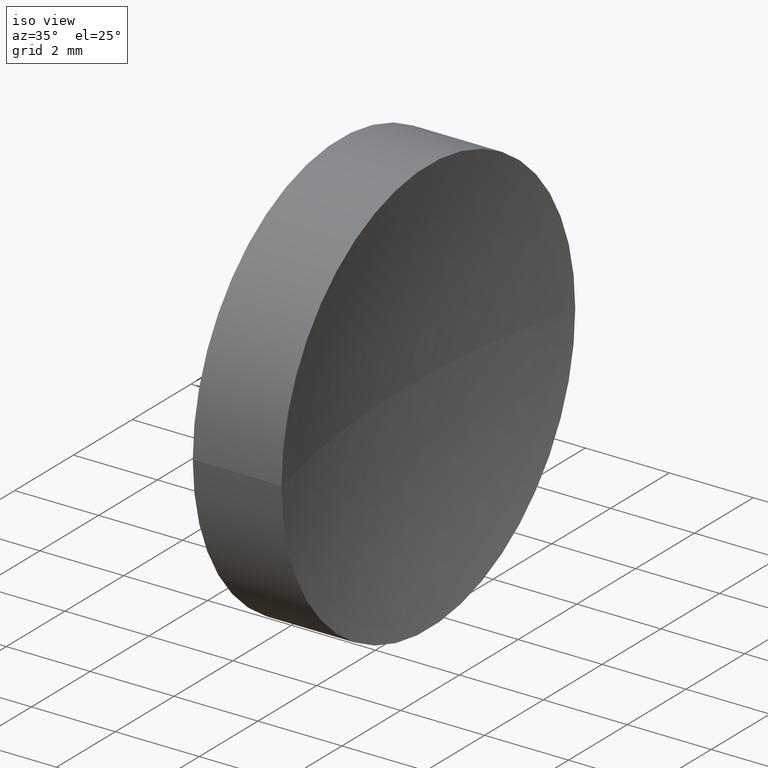
[diagram: clean part render]
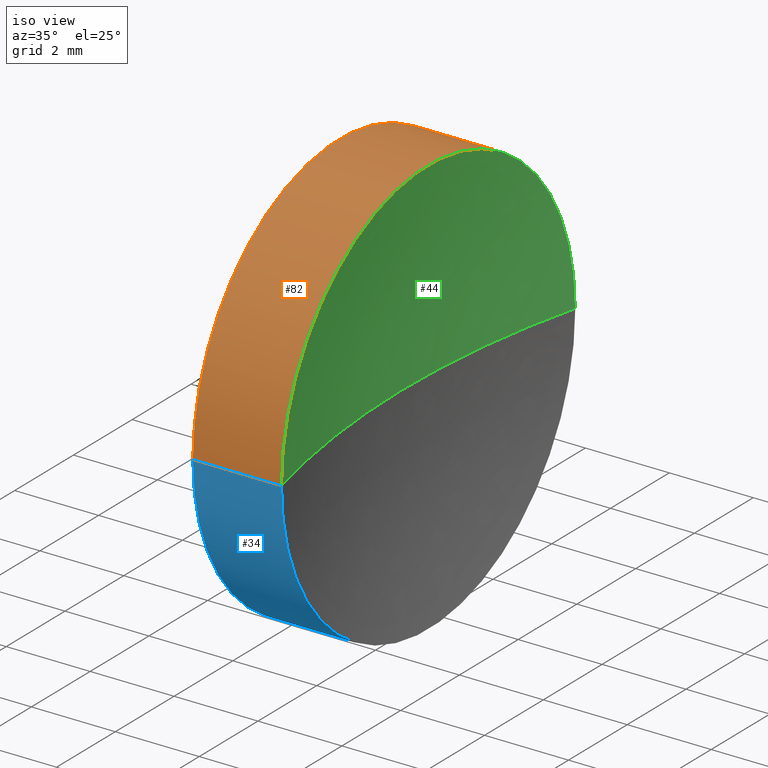
[diagram: same view with three faces highlighted in distinct colors, each labeled with its STEP entity id]
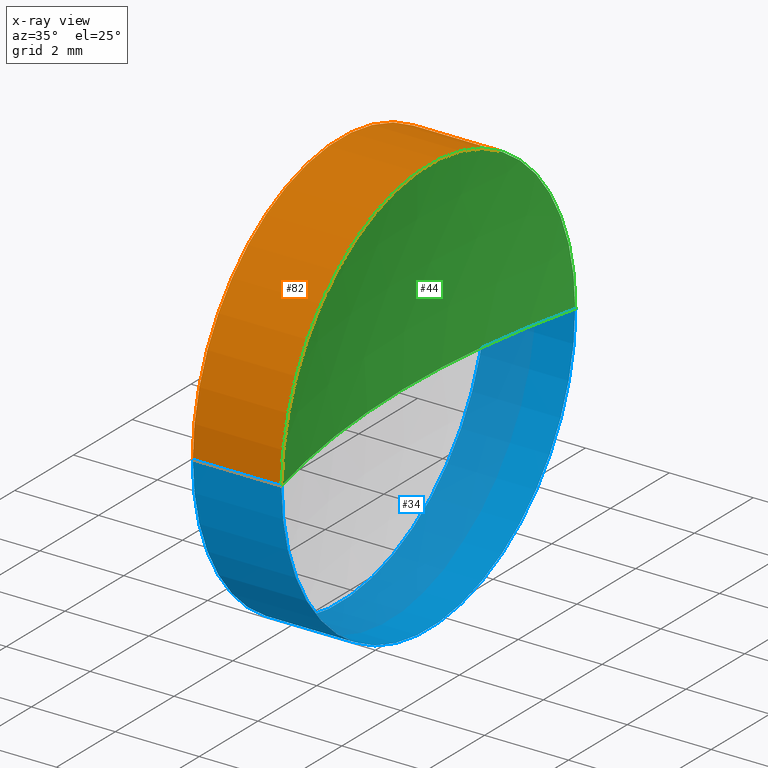
[diagram: x-ray of the same camera — body ghosted, the three highlighted faces saturated]
A machine part, iso view with three faces highlighted in distinct colors.
The next image is the same camera in x-ray (body ghosted, the three faces saturated) — at least one of them is partly hidden behind the body in this view.
Their STEP definitions:

[orange] entity #82 — the highlighted cylindrical surface (partial cylindrical patch) has radius 5 mm, axis along (-1, 0, -0).
#8 = CARTESIAN_POINT ( 'NONE',  ( 21.50597511808246100, 8.031126091403040200, 0.0000000000000000000 ) ) ;
#12 = CARTESIAN_POINT ( 'NONE',  ( 24.53870111481097600, 8.031126091403018900, -6.123233995736789000E-016 ) ) ;
#20 = DIRECTION ( 'NONE',  ( 0.0000000000000000000, -1.000000000000000000, 0.0000000000000000000 ) ) ;
#21 = VERTEX_POINT ( 'NONE', #157 ) ;
#23 = AXIS2_PLACEMENT_3D ( 'NONE', #112, #33, #20 ) ;
#30 = CARTESIAN_POINT ( 'NONE',  ( 21.50597511808246100, 18.03112609140304200, 6.123233995736768300E-016 ) ) ;
#33 = DIRECTION ( 'NONE',  ( -1.000000000000000000, 3.159171411554934600E-016, -0.0000000000000000000 ) ) ;
#43 = LINE ( 'NONE', #30, #111 ) ;
#45 = CARTESIAN_POINT ( 'NONE',  ( 24.53870111481098000, 18.03112609140306000, 0.0000000000000000000 ) ) ;
#47 = AXIS2_PLACEMENT_3D ( 'NONE', #59, #162, #123 ) ;
#48 = EDGE_CURVE ( 'NONE', #88, #55, #138, .T. ) ;
#55 = VERTEX_POINT ( 'NONE', #45 ) ;
#56 = EDGE_CURVE ( 'NONE', #88, #21, #165, .T. ) ;
#59 = CARTESIAN_POINT ( 'NONE',  ( 22.42423205362066000, 13.03112609140304200, 0.0000000000000000000 ) ) ;
#61 = VERTEX_POINT ( 'NONE', #70 ) ;
#70 = CARTESIAN_POINT ( 'NONE',  ( 22.42423205362066000, 18.03112609140304200, 6.123233995736768300E-016 ) ) ;
#73 = FACE_OUTER_BOUND ( 'NONE', #85, .T. ) ;
#76 = DIRECTION ( 'NONE',  ( -1.000000000000000000, 3.159171411554934600E-016, -0.0000000000000000000 ) ) ;
#79 = ORIENTED_EDGE ( 'NONE', *, *, #48, .T. ) ;
#82 = ADVANCED_FACE ( 'NONE', ( #73 ), #110, .T. ) ;
#85 = EDGE_LOOP ( 'NONE', ( #79, #113, #126, #155 ) ) ;
#88 = VERTEX_POINT ( 'NONE', #12 ) ;
#90 = DIRECTION ( 'NONE',  ( 0.0000000000000000000, -1.000000000000000000, 0.0000000000000000000 ) ) ;
#97 = DIRECTION ( 'NONE',  ( -1.000000000000000000, 3.159171411554934600E-016, -0.0000000000000000000 ) ) ;
#100 = DIRECTION ( 'NONE',  ( -1.000000000000000000, 3.159171411554934600E-016, -0.0000000000000000000 ) ) ;
#103 = CARTESIAN_POINT ( 'NONE',  ( 21.50597511808246100, 13.03112609140304200, 0.0000000000000000000 ) ) ;
#110 = CYLINDRICAL_SURFACE ( 'NONE', #136, 5.000000000000000900 ) ;
#111 = VECTOR ( 'NONE', #97, 1000.000000000000000 ) ;
#112 = CARTESIAN_POINT ( 'NONE',  ( 24.53870111481097600, 13.03112609140304000, 0.0000000000000000000 ) ) ;
#113 = ORIENTED_EDGE ( 'NONE', *, *, #146, .T. ) ;
#114 = CIRCLE ( 'NONE', #47, 5.000000000000000900 ) ;
#123 = DIRECTION ( 'NONE',  ( 0.0000000000000000000, -1.000000000000000000, 0.0000000000000000000 ) ) ;
#126 = ORIENTED_EDGE ( 'NONE', *, *, #153, .F. ) ;
#133 = VECTOR ( 'NONE', #100, 1000.000000000000000 ) ;
#136 = AXIS2_PLACEMENT_3D ( 'NONE', #103, #76, #90 ) ;
#138 = CIRCLE ( 'NONE', #23, 5.000000000000002700 ) ;
#146 = EDGE_CURVE ( 'NONE', #55, #61, #43, .T. ) ;
#153 = EDGE_CURVE ( 'NONE', #21, #61, #114, .T. ) ;
#155 = ORIENTED_EDGE ( 'NONE', *, *, #56, .F. ) ;
#157 = CARTESIAN_POINT ( 'NONE',  ( 22.42423205362066000, 8.031126091403040200, 0.0000000000000000000 ) ) ;
#162 = DIRECTION ( 'NONE',  ( -1.000000000000000000, 3.159171411554934600E-016, -0.0000000000000000000 ) ) ;
#165 = LINE ( 'NONE', #8, #133 ) ;

[blue] entity #34 — the highlighted cylindrical surface (partial cylindrical patch) has radius 5 mm, axis along (-1, 0, -0).
#2 = DIRECTION ( 'NONE',  ( -1.000000000000000000, 3.159171411554934600E-016, -0.0000000000000000000 ) ) ;
#4 = EDGE_CURVE ( 'NONE', #61, #21, #140, .T. ) ;
#8 = CARTESIAN_POINT ( 'NONE',  ( 21.50597511808246100, 8.031126091403040200, 0.0000000000000000000 ) ) ;
#9 = DIRECTION ( 'NONE',  ( -1.000000000000000000, 3.159171411554934600E-016, -0.0000000000000000000 ) ) ;
#12 = CARTESIAN_POINT ( 'NONE',  ( 24.53870111481097600, 8.031126091403018900, -6.123233995736789000E-016 ) ) ;
#21 = VERTEX_POINT ( 'NONE', #157 ) ;
#22 = ORIENTED_EDGE ( 'NONE', *, *, #56, .T. ) ;
#25 = FACE_OUTER_BOUND ( 'NONE', #118, .T. ) ;
#26 = CARTESIAN_POINT ( 'NONE',  ( 22.42423205362066000, 13.03112609140304200, 0.0000000000000000000 ) ) ;
#27 = AXIS2_PLACEMENT_3D ( 'NONE', #142, #9, #115 ) ;
#30 = CARTESIAN_POINT ( 'NONE',  ( 21.50597511808246100, 18.03112609140304200, 6.123233995736768300E-016 ) ) ;
#31 = CYLINDRICAL_SURFACE ( 'NONE', #72, 5.000000000000000900 ) ;
#34 = ADVANCED_FACE ( 'NONE', ( #25 ), #31, .T. ) ;
#38 = DIRECTION ( 'NONE',  ( 0.0000000000000000000, -1.000000000000000000, 0.0000000000000000000 ) ) ;
#43 = LINE ( 'NONE', #30, #111 ) ;
#45 = CARTESIAN_POINT ( 'NONE',  ( 24.53870111481098000, 18.03112609140306000, 0.0000000000000000000 ) ) ;
#55 = VERTEX_POINT ( 'NONE', #45 ) ;
#56 = EDGE_CURVE ( 'NONE', #88, #21, #165, .T. ) ;
#61 = VERTEX_POINT ( 'NONE', #70 ) ;
#65 = CARTESIAN_POINT ( 'NONE',  ( 21.50597511808246100, 13.03112609140304200, 0.0000000000000000000 ) ) ;
#70 = CARTESIAN_POINT ( 'NONE',  ( 22.42423205362066000, 18.03112609140304200, 6.123233995736768300E-016 ) ) ;
#72 = AXIS2_PLACEMENT_3D ( 'NONE', #65, #2, #92 ) ;
#84 = ORIENTED_EDGE ( 'NONE', *, *, #146, .F. ) ;
#88 = VERTEX_POINT ( 'NONE', #12 ) ;
#92 = DIRECTION ( 'NONE',  ( 0.0000000000000000000, -1.000000000000000000, 0.0000000000000000000 ) ) ;
#97 = DIRECTION ( 'NONE',  ( -1.000000000000000000, 3.159171411554934600E-016, -0.0000000000000000000 ) ) ;
#100 = DIRECTION ( 'NONE',  ( -1.000000000000000000, 3.159171411554934600E-016, -0.0000000000000000000 ) ) ;
#101 = AXIS2_PLACEMENT_3D ( 'NONE', #26, #116, #38 ) ;
#105 = CIRCLE ( 'NONE', #27, 5.000000000000002700 ) ;
#111 = VECTOR ( 'NONE', #97, 1000.000000000000000 ) ;
#115 = DIRECTION ( 'NONE',  ( 0.0000000000000000000, -1.000000000000000000, 0.0000000000000000000 ) ) ;
#116 = DIRECTION ( 'NONE',  ( -1.000000000000000000, 3.159171411554934600E-016, -0.0000000000000000000 ) ) ;
#118 = EDGE_LOOP ( 'NONE', ( #84, #122, #22, #145 ) ) ;
#122 = ORIENTED_EDGE ( 'NONE', *, *, #164, .T. ) ;
#133 = VECTOR ( 'NONE', #100, 1000.000000000000000 ) ;
#140 = CIRCLE ( 'NONE', #101, 5.000000000000000900 ) ;
#142 = CARTESIAN_POINT ( 'NONE',  ( 24.53870111481097600, 13.03112609140304000, 0.0000000000000000000 ) ) ;
#145 = ORIENTED_EDGE ( 'NONE', *, *, #4, .F. ) ;
#146 = EDGE_CURVE ( 'NONE', #55, #61, #43, .T. ) ;
#157 = CARTESIAN_POINT ( 'NONE',  ( 22.42423205362066000, 8.031126091403040200, 0.0000000000000000000 ) ) ;
#164 = EDGE_CURVE ( 'NONE', #55, #88, #105, .T. ) ;
#165 = LINE ( 'NONE', #8, #133 ) ;

[green] entity #44 — the highlighted spherical surface has radius 20.65 mm.
#10 = AXIS2_PLACEMENT_3D ( 'NONE', #124, #32, #89 ) ;
#11 = CARTESIAN_POINT ( 'NONE',  ( 44.57423205362065500, 13.03112609140303100, 0.0000000000000000000 ) ) ;
#12 = CARTESIAN_POINT ( 'NONE',  ( 24.53870111481097600, 8.031126091403018900, -6.123233995736789000E-016 ) ) ;
#20 = DIRECTION ( 'NONE',  ( 0.0000000000000000000, -1.000000000000000000, 0.0000000000000000000 ) ) ;
#23 = AXIS2_PLACEMENT_3D ( 'NONE', #112, #33, #20 ) ;
#24 = CARTESIAN_POINT ( 'NONE',  ( 44.57423205362065500, 13.03112609140303100, 0.0000000000000000000 ) ) ;
#32 = DIRECTION ( 'NONE',  ( 3.868869157118576300E-032, 1.224646799147353200E-016, -1.000000000000000000 ) ) ;
#33 = DIRECTION ( 'NONE',  ( -1.000000000000000000, 3.159171411554934600E-016, -0.0000000000000000000 ) ) ;
#40 = FACE_OUTER_BOUND ( 'NONE', #127, .T. ) ;
#44 = ADVANCED_FACE ( 'NONE', ( #40 ), #102, .F. ) ;
#45 = CARTESIAN_POINT ( 'NONE',  ( 24.53870111481098000, 18.03112609140306000, 0.0000000000000000000 ) ) ;
#48 = EDGE_CURVE ( 'NONE', #88, #55, #138, .T. ) ;
#50 = ORIENTED_EDGE ( 'NONE', *, *, #91, .F. ) ;
#51 = ORIENTED_EDGE ( 'NONE', *, *, #64, .T. ) ;
#55 = VERTEX_POINT ( 'NONE', #45 ) ;
#64 = EDGE_CURVE ( 'NONE', #88, #121, #104, .T. ) ;
#81 = DIRECTION ( 'NONE',  ( 3.360239178647568300E-016, 1.000000000000000000, 0.0000000000000000000 ) ) ;
#83 = AXIS2_PLACEMENT_3D ( 'NONE', #11, #130, #81 ) ;
#86 = DIRECTION ( 'NONE',  ( 0.0000000000000000000, 0.0000000000000000000, 1.000000000000000000 ) ) ;
#87 = ORIENTED_EDGE ( 'NONE', *, *, #48, .F. ) ;
#88 = VERTEX_POINT ( 'NONE', #12 ) ;
#89 = DIRECTION ( 'NONE',  ( 0.0000000000000000000, 1.000000000000000000, 1.224646799147353500E-016 ) ) ;
#91 = EDGE_CURVE ( 'NONE', #55, #121, #99, .T. ) ;
#99 = CIRCLE ( 'NONE', #108, 20.65000000000000200 ) ;
#102 = SPHERICAL_SURFACE ( 'NONE', #83, 20.65000000000000200 ) ;
#104 = CIRCLE ( 'NONE', #10, 20.64999999999999900 ) ;
#108 = AXIS2_PLACEMENT_3D ( 'NONE', #24, #86, #154 ) ;
#112 = CARTESIAN_POINT ( 'NONE',  ( 24.53870111481097600, 13.03112609140304000, 0.0000000000000000000 ) ) ;
#121 = VERTEX_POINT ( 'NONE', #166 ) ;
#124 = CARTESIAN_POINT ( 'NONE',  ( 44.57423205362065500, 13.03112609140303100, 0.0000000000000000000 ) ) ;
#127 = EDGE_LOOP ( 'NONE', ( #87, #51, #50 ) ) ;
#130 = DIRECTION ( 'NONE',  ( 0.0000000000000000000, 0.0000000000000000000, -1.000000000000000000 ) ) ;
#138 = CIRCLE ( 'NONE', #23, 5.000000000000002700 ) ;
#154 = DIRECTION ( 'NONE',  ( 1.000000000000000000, 0.0000000000000000000, 0.0000000000000000000 ) ) ;
#166 = CARTESIAN_POINT ( 'NONE',  ( 23.92423205362065300, 13.03112609140303800, 0.0000000000000000000 ) ) ;